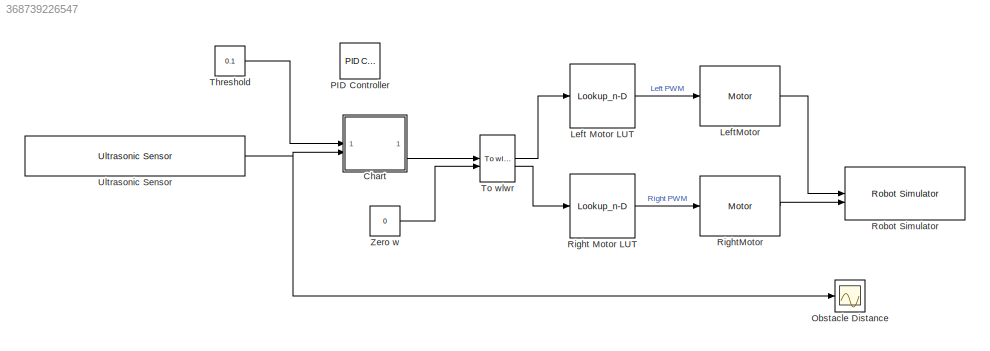
MODEL slx_368739226547
KIND model
CONFIG AbsTol = auto
CONFIG EnableMultiTasking = off
CONFIG FixedStep = 0.01
CONFIG MaxStep = auto
CONFIG MinStep = auto
CONFIG RelTol = 1e-3
CONFIG SampleTimeConstraint = Unconstrained
CONFIG SolverName = FixedStepDiscrete
CONFIG StartTime = 0.0
CONFIG StopTime = 10.0
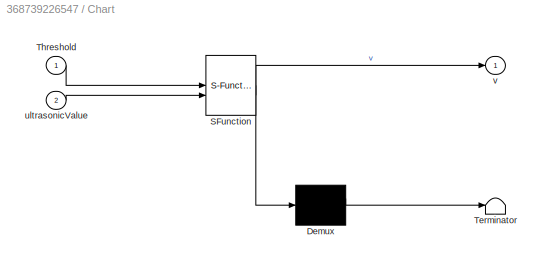
BLOCK [SubSystem] Chart
  ErrorFcn = Stateflow.Translate.translate
  PermitHierarchicalResolution = ExplicitOnly
  SFBlockType = Chart
  TreatAsAtomicUnit = on
BLOCK [Demux] Chart/ Demux 
  Outputs = 1
BLOCK [S-Function] Chart/ SFunction 
  EnableBusSupport = on
  FunctionName = sf_sfun
  PortCounts = [2 2]
  SFcnIsStateOwnerBlock = off
  SFunctionDeploymentMode = off
  Tag = Stateflow S-Function 3
BLOCK [Terminator] Chart/ Terminator 
BLOCK [Inport] Chart/Threshold
BLOCK [Inport] Chart/ultrasonicValue
  Port = 2
BLOCK [Outport] Chart/v
BLOCK [Lookup_n-D] Left Motor LUT
  BreakpointsForDimension1 = WheelSpeed
  ExtrapMethod = Clip
  InputPortMap = u0
  InternalRulePriority = Speed
  InterpMethod = Nearest
  NumberOfTableDimensions = 1
  RndMeth = Simplest
  Table = InputPWM
BLOCK [Reference] LeftMotor  REF=mobileRoboticsTrainingLib/Motor
  SourceBlock = mobileRoboticsTrainingLib/Motor
  SourceProductName = Mobile Robotics Training Library
  SourceType = Motor Model
BLOCK [Scope] Obstacle Distance
  Floating = off
  NumInputPorts = 1
  ScopeSpecificationString = Simulink.scopes.TimeScopeBlockCfg('CurrentConfiguration', extmgr.ConfigurationSet(extmgr.Configuration('Core','General UI',true),extmgr.Configuration('Core','Source UI',true),extmgr.Configuration('Sources','WiredSimulink',true),extmgr.Configuration('Visuals','Time Domain',true,'SerializedDisplays',{struct('MinYLimReal','-0.15875','MaxYLimReal','1.42875','YLabelReal','','MinYLimMag','0.00000','MaxY...<+1379ch>
BLOCK [Reference] PID Controller  REF=slpidlib/PID Controller
  SourceBlock = slpidlib/PID Controller
  SourceType = PID 1dof
BLOCK [Lookup_n-D] Right Motor LUT
  BreakpointsForDimension1 = WheelSpeed
  ExtrapMethod = Clip
  InputPortMap = u0
  InternalRulePriority = Speed
  InterpMethod = Nearest
  NumberOfTableDimensions = 1
  RndMeth = Simplest
  Table = InputPWM
BLOCK [Reference] RightMotor  REF=mobileRoboticsTrainingLib/Motor
  SourceBlock = mobileRoboticsTrainingLib/Motor
  SourceProductName = Mobile Robotics Training Library
  SourceType = Motor Model
BLOCK [Reference] Robot Simulator  REF=mobileRoboticsTrainingLib/Robot Simulator
  Priority = 99
  SourceBlock = mobileRoboticsTrainingLib/Robot Simulator
  SourceProductName = Mobile Robotics Training Library
  SourceType = Robot Simulator
BLOCK [Constant] Threshold
  Value = 0.1
BLOCK [Reference] To wlwr  REF=mobileRoboticsTrainingLib/To wlwr
  SourceBlock = mobileRoboticsTrainingLib/To wlwr
  SourceProductName = Mobile Robotics Training Library
  SourceType = To wlwr
BLOCK [Reference] Ultrasonic Sensor  REF=mobileRoboticsTrainingLib/Ultrasonic Sensor
  SourceBlock = mobileRoboticsTrainingLib/Ultrasonic Sensor
  SourceProductName = Mobile Robotics Training Library
  SourceType = Ultrasonic Sensor Simulation
BLOCK [Constant] Zero w
  OutDataTypeStr = Inherit: Inherit via back propagation
  Value = 0
LINE Chart:1 -> To wlwr:1
LINE Left Motor LUT:1 -> LeftMotor:1
LINE LeftMotor:1 -> Robot Simulator:1
LINE Right Motor LUT:1 -> RightMotor:1
LINE RightMotor:1 -> Robot Simulator:2
LINE Threshold:1 -> Chart:1
LINE To wlwr:1 -> Left Motor LUT:1
LINE To wlwr:2 -> Right Motor LUT:1
NET Ultrasonic Sensor:1 -> Chart:2, Obstacle Distance:1
LINE Zero w:1 -> To wlwr:2
note: NET lines group one-source signal fan-out (src -> all destinations, sorted); 1:1 wires keep LINE
CHART Chart states=2 transitions=3
  STATE_LABEL 'GoForward\nentry: v=0.2'
  STATE_LABEL 'Stop\nentry: v=0'
CHART  states=0 transitions=0
